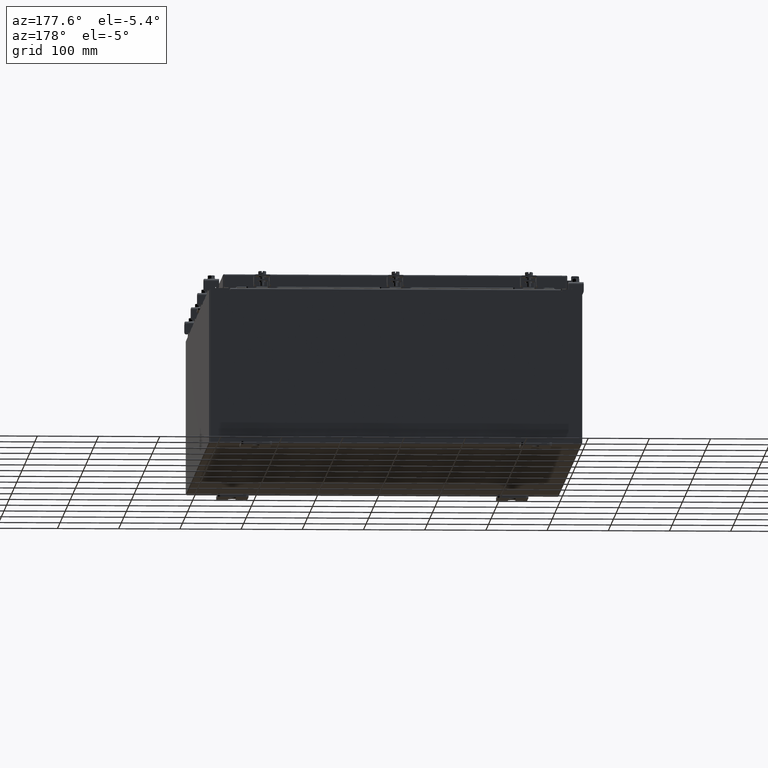
[diagram: clean part render]
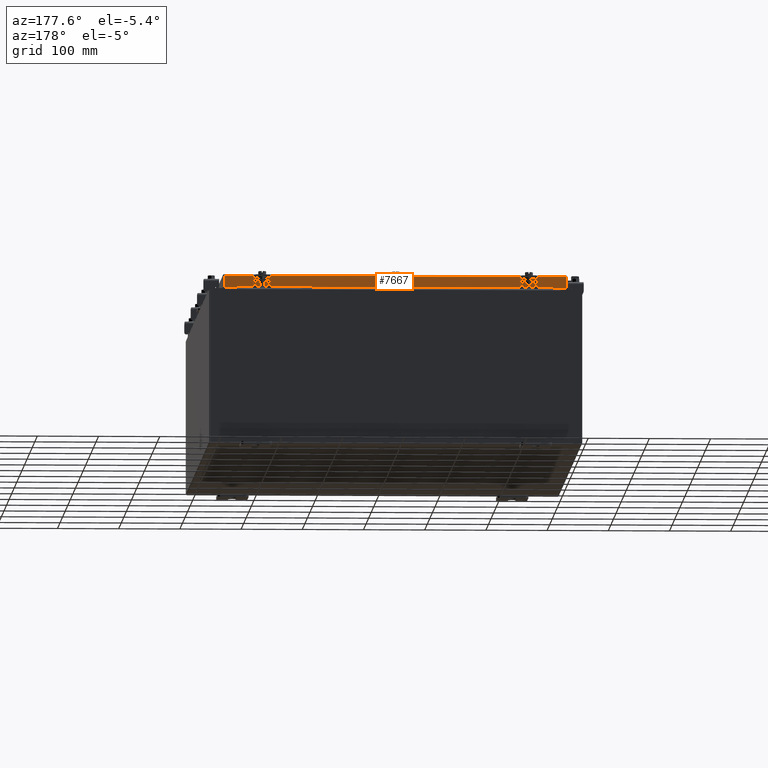
[diagram: same view with one face highlighted and labeled with its STEP entity id]
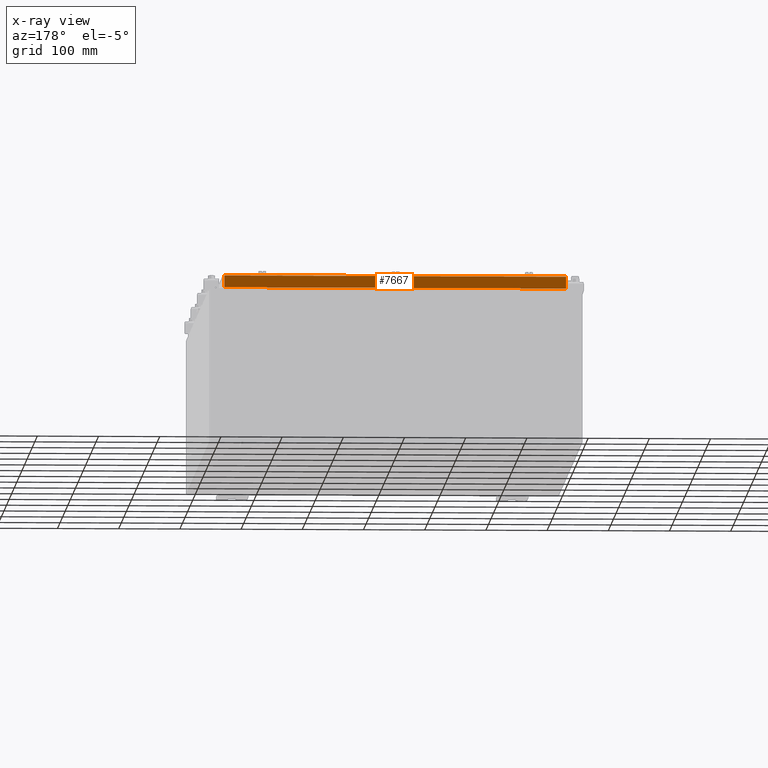
[diagram: x-ray of the same camera — body ghosted, the highlighted face saturated]
A machine part, auxiliary view. The second image highlights one B-rep face of the part: STEP entity #7667.
The next image is the same camera in x-ray: the body ghosted, the highlighted face saturated — about 0% of this face is hidden behind the body in this view.
In plain terms, the highlighted planar face has unit normal (0, -1, -0).
Its self-contained STEP definition (entity closure, byte-faithful):
#164 = LINE ( 'NONE', #9700, #9194 ) ;
#272 = CARTESIAN_POINT ( 'NONE',  ( 10.23915786437626700, 17.09399999999999100, -0.8500000000000033100 ) ) ;
#389 = LINE ( 'NONE', #21214, #19041 ) ;
#458 = CARTESIAN_POINT ( 'NONE',  ( -10.98915786437626900, 17.09399999999999800, -0.08770000000000007000 ) ) ;
#937 = DIRECTION ( 'NONE',  ( 1.000000000000000000, -4.379057701015054300E-047, 1.233005954894504400E-016 ) ) ;
#1599 = CARTESIAN_POINT ( 'NONE',  ( -11.07800000000000300, 17.09400000000000100, -0.8500000000000024200 ) ) ;
#2924 = ORIENTED_EDGE ( 'NONE', *, *, #10789, .F. ) ;
#3020 = EDGE_CURVE ( 'NONE', #13078, #13419, #7910, .T. ) ;
#3109 = VECTOR ( 'NONE', #5939, 39.37007874015748100 ) ;
#3482 = EDGE_LOOP ( 'NONE', ( #9088, #5794, #2924, #18726, #16703, #20845 ) ) ;
#3635 = DIRECTION ( 'NONE',  ( 3.475696988576941300E-031, -1.000000000000000000, -2.818880942772350300E-015 ) ) ;
#3773 = LINE ( 'NONE', #22539, #7996 ) ;
#3980 = AXIS2_PLACEMENT_3D ( 'NONE', #19812, #3635, #16270 ) ;
#5074 = CARTESIAN_POINT ( 'NONE',  ( -10.23915786437626700, 17.09399999999999100, -0.8500000000000033100 ) ) ;
#5187 = CARTESIAN_POINT ( 'NONE',  ( -10.23915786437626700, 17.09399999999999100, -0.8500000000000033100 ) ) ;
#5794 = ORIENTED_EDGE ( 'NONE', *, *, #9076, .T. ) ;
#5939 = DIRECTION ( 'NONE',  ( -0.0000000000000000000, 2.818880942772350300E-015, -1.000000000000000000 ) ) ;
#7667 = ADVANCED_FACE ( 'NONE', ( #14344 ), #14489, .F. ) ;
#7910 = LINE ( 'NONE', #11331, #3109 ) ;
#7996 = VECTOR ( 'NONE', #937, 39.37007874015748100 ) ;
#8681 = DIRECTION ( 'NONE',  ( -1.000000000000000000, -3.475696988576942200E-031, -9.473942235605600700E-046 ) ) ;
#9076 = EDGE_CURVE ( 'NONE', #20495, #13298, #164, .T. ) ;
#9088 = ORIENTED_EDGE ( 'NONE', *, *, #14947, .F. ) ;
#9194 = VECTOR ( 'NONE', #22297, 39.37007874015748100 ) ;
#9528 = VECTOR ( 'NONE', #12459, 39.37007874015748100 ) ;
#9700 = CARTESIAN_POINT ( 'NONE',  ( 10.98915786437626700, 17.09399999999999800, 4.844676449176213100E-014 ) ) ;
#10789 = EDGE_CURVE ( 'NONE', #18997, #13298, #3773, .T. ) ;
#10810 = EDGE_CURVE ( 'NONE', #16690, #18997, #18157, .T. ) ;
#10813 = CARTESIAN_POINT ( 'NONE',  ( -10.98915786437626900, 17.09400000000000100, -0.8500000000000024200 ) ) ;
#11331 = CARTESIAN_POINT ( 'NONE',  ( -10.98915786437626900, 17.09399999999999800, -0.07469999999999978000 ) ) ;
#12459 = DIRECTION ( 'NONE',  ( 1.000000000000000000, -4.379057701015054300E-047, 1.233005954894504400E-016 ) ) ;
#12758 = EDGE_CURVE ( 'NONE', #13419, #16690, #23367, .T. ) ;
#13078 = VERTEX_POINT ( 'NONE', #458 ) ;
#13298 = VERTEX_POINT ( 'NONE', #17631 ) ;
#13382 = VECTOR ( 'NONE', #21433, 39.37007874015748100 ) ;
#13419 = VERTEX_POINT ( 'NONE', #10813 ) ;
#14344 = FACE_OUTER_BOUND ( 'NONE', #3482, .T. ) ;
#14489 = PLANE ( 'NONE',  #3980 ) ;
#14947 = EDGE_CURVE ( 'NONE', #20495, #13078, #389, .T. ) ;
#16270 = DIRECTION ( 'NONE',  ( 0.0000000000000000000, 2.818880942772350300E-015, -1.000000000000000000 ) ) ;
#16690 = VERTEX_POINT ( 'NONE', #5074 ) ;
#16703 = ORIENTED_EDGE ( 'NONE', *, *, #12758, .F. ) ;
#17631 = CARTESIAN_POINT ( 'NONE',  ( 10.98915786437626700, 17.09400000000000100, -0.8499999999999996400 ) ) ;
#18157 = LINE ( 'NONE', #5187, #13382 ) ;
#18726 = ORIENTED_EDGE ( 'NONE', *, *, #10810, .F. ) ;
#18997 = VERTEX_POINT ( 'NONE', #272 ) ;
#19041 = VECTOR ( 'NONE', #8681, 39.37007874015748100 ) ;
#19812 = CARTESIAN_POINT ( 'NONE',  ( -5.941356432273423300E-030, 17.09399999999999800, 4.844676449176213100E-014 ) ) ;
#20495 = VERTEX_POINT ( 'NONE', #20597 ) ;
#20597 = CARTESIAN_POINT ( 'NONE',  ( 10.98915786437626700, 17.09399999999999800, -0.08770000000000007000 ) ) ;
#20845 = ORIENTED_EDGE ( 'NONE', *, *, #3020, .F. ) ;
#21214 = CARTESIAN_POINT ( 'NONE',  ( -11.07800000000000300, 17.09399999999999800, -0.08770000000000007000 ) ) ;
#21433 = DIRECTION ( 'NONE',  ( 1.000000000000000000, -0.0000000000000000000, -0.0000000000000000000 ) ) ;
#22297 = DIRECTION ( 'NONE',  ( 0.0000000000000000000, 2.818880942772350300E-015, -1.000000000000000000 ) ) ;
#22539 = CARTESIAN_POINT ( 'NONE',  ( -11.07800000000000300, 17.09400000000000100, -0.8500000000000024200 ) ) ;
#23367 = LINE ( 'NONE', #1599, #9528 ) ;